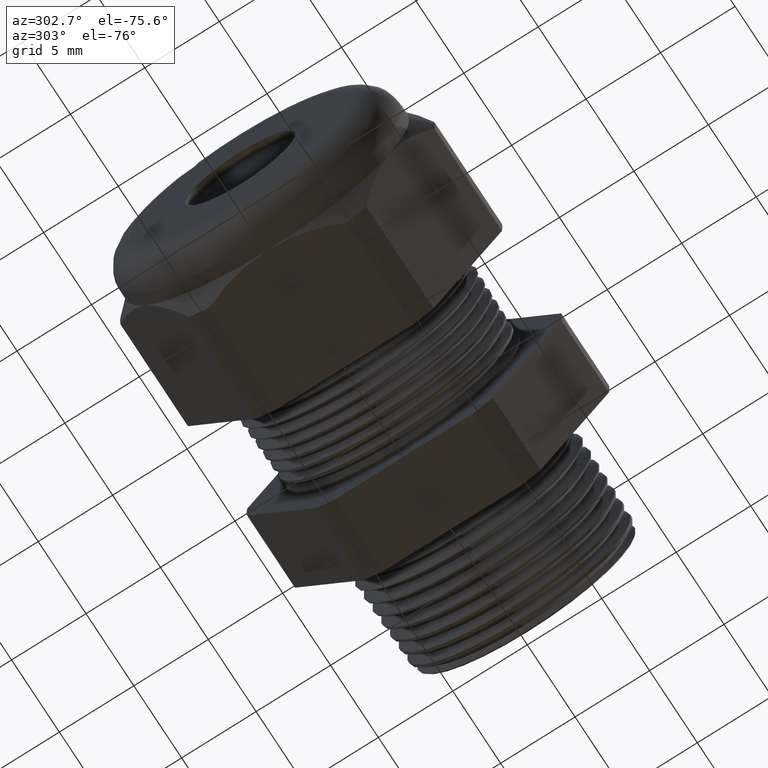
[diagram: clean part render]
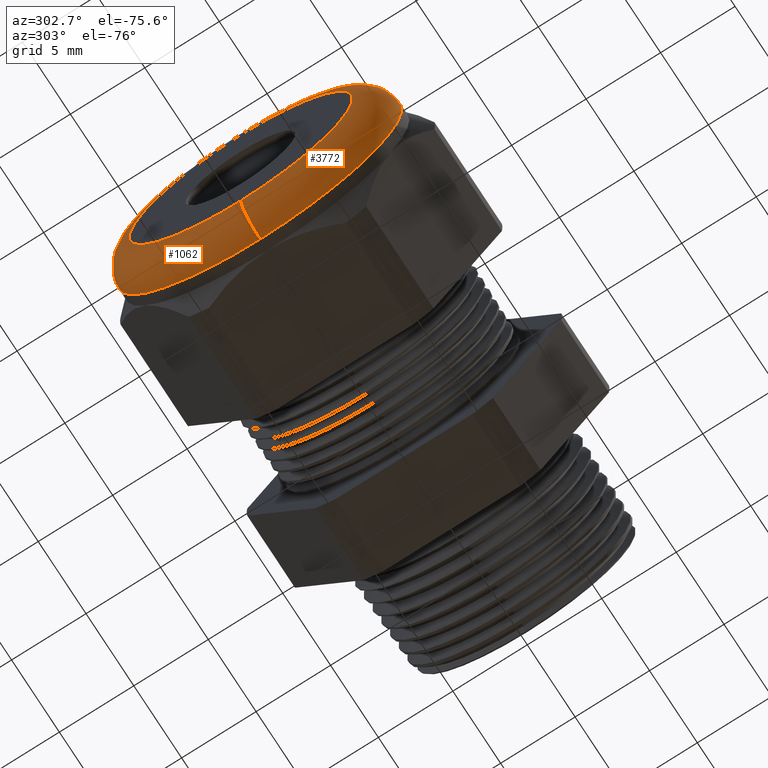
[diagram: same view with one multi-face feature highlighted, each face labeled with its STEP entity id]
A machine part, auxiliary view. The highlighted faces form ONE feature: a constant-radius fillet chain: 2 tangent blend faces with common blend radius 2.032 mm. The faces share edges in the B-rep.
Their STEP definitions:
[1] entity #1062 (Torus):
#1054 = ORIENTED_EDGE ( 'NONE', *, *, #1055, .T. ) ;
#1055 = EDGE_CURVE ( 'NONE', #1063, #1056, #2933, .T. ) ;
#1056 = VERTEX_POINT ( 'NONE', #2928 ) ;
#1057 = VERTEX_POINT ( 'NONE', #2927 ) ;
#1058 = ORIENTED_EDGE ( 'NONE', *, *, #1059, .F. ) ;
#1059 = EDGE_CURVE ( 'NONE', #1074, #1057, #2925, .T. ) ;
#1062 = ADVANCED_FACE ( 'NONE', ( #2914 ), #2913, .T. ) ;
#1063 = VERTEX_POINT ( 'NONE', #2908 ) ;
#1065 = ORIENTED_EDGE ( 'NONE', *, *, #1066, .F. ) ;
#1066 = EDGE_CURVE ( 'NONE', #1057, #1056, #2907, .T. ) ;
#1071 = EDGE_LOOP ( 'NONE', ( #1072, #1054, #1065, #1058 ) ) ;
#1072 = ORIENTED_EDGE ( 'NONE', *, *, #1073, .F. ) ;
#1073 = EDGE_CURVE ( 'NONE', #1063, #1074, #2962, .T. ) ;
#1074 = VERTEX_POINT ( 'NONE', #2957 ) ;
#2907 = CIRCLE ( 'NONE', #2971, 0.2950000000000001000 ) ;
#2908 = CARTESIAN_POINT ( 'NONE',  ( -1.100000000000000100, 0.0000000000000000000, -0.3750000000000001100 ) ) ;
#2909 = DIRECTION ( 'NONE',  ( 0.0000000000000000000, 0.0000000000000000000, 1.000000000000000000 ) ) ;
#2910 = DIRECTION ( 'NONE',  ( -1.000000000000000000, 0.0000000000000000000, 0.0000000000000000000 ) ) ;
#2911 = CARTESIAN_POINT ( 'NONE',  ( -1.100000000000000100, 0.0000000000000000000, 0.0000000000000000000 ) ) ;
#2912 = AXIS2_PLACEMENT_3D ( 'NONE', #2911, #2910, #2909 ) ;
#2913 = TOROIDAL_SURFACE ( 'NONE', #2912, 0.2950000000000001000, 0.08000000000000000200 ) ;
#2914 = FACE_OUTER_BOUND ( 'NONE', #1071, .T. ) ;
#2921 = DIRECTION ( 'NONE',  ( 0.0000000000000000000, 0.0000000000000000000, -1.000000000000000000 ) ) ;
#2922 = DIRECTION ( 'NONE',  ( 0.0000000000000000000, -1.000000000000000000, 0.0000000000000000000 ) ) ;
#2923 = CARTESIAN_POINT ( 'NONE',  ( -1.100000000000000100, 0.0000000000000000000, 0.2950000000000001000 ) ) ;
#2924 = AXIS2_PLACEMENT_3D ( 'NONE', #2923, #2922, #2921 ) ;
#2925 = CIRCLE ( 'NONE', #2924, 0.08000000000000000200 ) ;
#2927 = CARTESIAN_POINT ( 'NONE',  ( -1.179999999999999900, 0.0000000000000000000, 0.2950000000000001000 ) ) ;
#2928 = CARTESIAN_POINT ( 'NONE',  ( -1.179999999999999900, 4.102566777143634000E-017, -0.2950000000000001000 ) ) ;
#2929 = DIRECTION ( 'NONE',  ( 0.0000000000000000000, -1.224646799147353500E-016, 1.000000000000000000 ) ) ;
#2930 = DIRECTION ( 'NONE',  ( 0.0000000000000000000, 1.000000000000000000, 1.224646799147353200E-016 ) ) ;
#2931 = CARTESIAN_POINT ( 'NONE',  ( -1.100000000000000100, 3.612708057484693200E-017, -0.2950000000000001000 ) ) ;
#2932 = AXIS2_PLACEMENT_3D ( 'NONE', #2931, #2930, #2929 ) ;
#2933 = CIRCLE ( 'NONE', #2932, 0.08000000000000000200 ) ;
#2957 = CARTESIAN_POINT ( 'NONE',  ( -1.100000000000000100, 4.592425496802576100E-017, 0.3750000000000001100 ) ) ;
#2958 = DIRECTION ( 'NONE',  ( 0.0000000000000000000, 0.0000000000000000000, 1.000000000000000000 ) ) ;
#2959 = DIRECTION ( 'NONE',  ( 1.000000000000000000, 0.0000000000000000000, 0.0000000000000000000 ) ) ;
#2960 = CARTESIAN_POINT ( 'NONE',  ( -1.100000000000000100, 0.0000000000000000000, 0.0000000000000000000 ) ) ;
#2961 = AXIS2_PLACEMENT_3D ( 'NONE', #2960, #2959, #2958 ) ;
#2962 = CIRCLE ( 'NONE', #2961, 0.3750000000000001100 ) ;
#2968 = DIRECTION ( 'NONE',  ( 0.0000000000000000000, 0.0000000000000000000, 1.000000000000000000 ) ) ;
#2969 = DIRECTION ( 'NONE',  ( -1.000000000000000000, 0.0000000000000000000, 0.0000000000000000000 ) ) ;
#2970 = CARTESIAN_POINT ( 'NONE',  ( -1.179999999999999900, 0.0000000000000000000, 0.0000000000000000000 ) ) ;
#2971 = AXIS2_PLACEMENT_3D ( 'NONE', #2970, #2969, #2968 ) ;
[2] entity #3772 (Torus):
#8 = EDGE_CURVE ( 'NONE', #1056, #1057, #1044, .T. ) ;
#25 = EDGE_CURVE ( 'NONE', #1074, #1063, #1083, .T. ) ;
#1042 = CARTESIAN_POINT ( 'NONE',  ( -1.179999999999999900, 0.0000000000000000000, 0.0000000000000000000 ) ) ;
#1043 = AXIS2_PLACEMENT_3D ( 'NONE', #1042, #1110, #1109 ) ;
#1044 = CIRCLE ( 'NONE', #1043, 0.2950000000000001000 ) ;
#1055 = EDGE_CURVE ( 'NONE', #1063, #1056, #2933, .T. ) ;
#1056 = VERTEX_POINT ( 'NONE', #2928 ) ;
#1057 = VERTEX_POINT ( 'NONE', #2927 ) ;
#1059 = EDGE_CURVE ( 'NONE', #1074, #1057, #2925, .T. ) ;
#1063 = VERTEX_POINT ( 'NONE', #2908 ) ;
#1074 = VERTEX_POINT ( 'NONE', #2957 ) ;
#1083 = CIRCLE ( 'NONE', #1142, 0.3750000000000001100 ) ;
#1109 = DIRECTION ( 'NONE',  ( 0.0000000000000000000, 0.0000000000000000000, 1.000000000000000000 ) ) ;
#1110 = DIRECTION ( 'NONE',  ( -1.000000000000000000, 0.0000000000000000000, 0.0000000000000000000 ) ) ;
#1139 = DIRECTION ( 'NONE',  ( 0.0000000000000000000, 0.0000000000000000000, 1.000000000000000000 ) ) ;
#1140 = DIRECTION ( 'NONE',  ( 1.000000000000000000, 0.0000000000000000000, 0.0000000000000000000 ) ) ;
#1141 = CARTESIAN_POINT ( 'NONE',  ( -1.100000000000000100, 0.0000000000000000000, 0.0000000000000000000 ) ) ;
#1142 = AXIS2_PLACEMENT_3D ( 'NONE', #1141, #1140, #1139 ) ;
#2908 = CARTESIAN_POINT ( 'NONE',  ( -1.100000000000000100, 0.0000000000000000000, -0.3750000000000001100 ) ) ;
#2921 = DIRECTION ( 'NONE',  ( 0.0000000000000000000, 0.0000000000000000000, -1.000000000000000000 ) ) ;
#2922 = DIRECTION ( 'NONE',  ( 0.0000000000000000000, -1.000000000000000000, 0.0000000000000000000 ) ) ;
#2923 = CARTESIAN_POINT ( 'NONE',  ( -1.100000000000000100, 0.0000000000000000000, 0.2950000000000001000 ) ) ;
#2924 = AXIS2_PLACEMENT_3D ( 'NONE', #2923, #2922, #2921 ) ;
#2925 = CIRCLE ( 'NONE', #2924, 0.08000000000000000200 ) ;
#2927 = CARTESIAN_POINT ( 'NONE',  ( -1.179999999999999900, 0.0000000000000000000, 0.2950000000000001000 ) ) ;
#2928 = CARTESIAN_POINT ( 'NONE',  ( -1.179999999999999900, 4.102566777143634000E-017, -0.2950000000000001000 ) ) ;
#2929 = DIRECTION ( 'NONE',  ( 0.0000000000000000000, -1.224646799147353500E-016, 1.000000000000000000 ) ) ;
#2930 = DIRECTION ( 'NONE',  ( 0.0000000000000000000, 1.000000000000000000, 1.224646799147353200E-016 ) ) ;
#2931 = CARTESIAN_POINT ( 'NONE',  ( -1.100000000000000100, 3.612708057484693200E-017, -0.2950000000000001000 ) ) ;
#2932 = AXIS2_PLACEMENT_3D ( 'NONE', #2931, #2930, #2929 ) ;
#2933 = CIRCLE ( 'NONE', #2932, 0.08000000000000000200 ) ;
#2957 = CARTESIAN_POINT ( 'NONE',  ( -1.100000000000000100, 4.592425496802576100E-017, 0.3750000000000001100 ) ) ;
#3021 = DIRECTION ( 'NONE',  ( 0.0000000000000000000, 0.0000000000000000000, 1.000000000000000000 ) ) ;
#3022 = DIRECTION ( 'NONE',  ( -1.000000000000000000, 0.0000000000000000000, 0.0000000000000000000 ) ) ;
#3023 = AXIS2_PLACEMENT_3D ( 'NONE', #3030, #3022, #3021 ) ;
#3024 = TOROIDAL_SURFACE ( 'NONE', #3023, 0.2950000000000001000, 0.08000000000000000200 ) ;
#3025 = FACE_OUTER_BOUND ( 'NONE', #3773, .T. ) ;
#3030 = CARTESIAN_POINT ( 'NONE',  ( -1.100000000000000100, 0.0000000000000000000, 0.0000000000000000000 ) ) ;
#3771 = ORIENTED_EDGE ( 'NONE', *, *, #1055, .F. ) ;
#3772 = ADVANCED_FACE ( 'NONE', ( #3025 ), #3024, .T. ) ;
#3773 = EDGE_LOOP ( 'NONE', ( #3771, #3774, #3775, #3776 ) ) ;
#3774 = ORIENTED_EDGE ( 'NONE', *, *, #25, .F. ) ;
#3775 = ORIENTED_EDGE ( 'NONE', *, *, #1059, .T. ) ;
#3776 = ORIENTED_EDGE ( 'NONE', *, *, #8, .F. ) ;